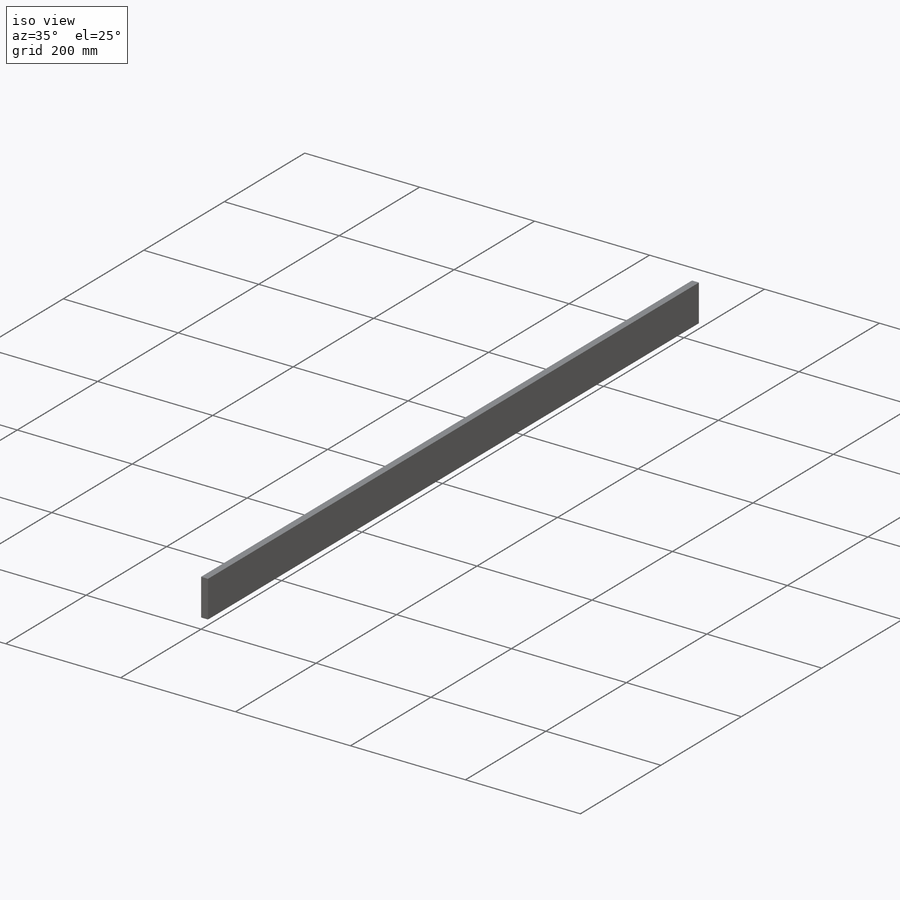
[diagram: iso view]
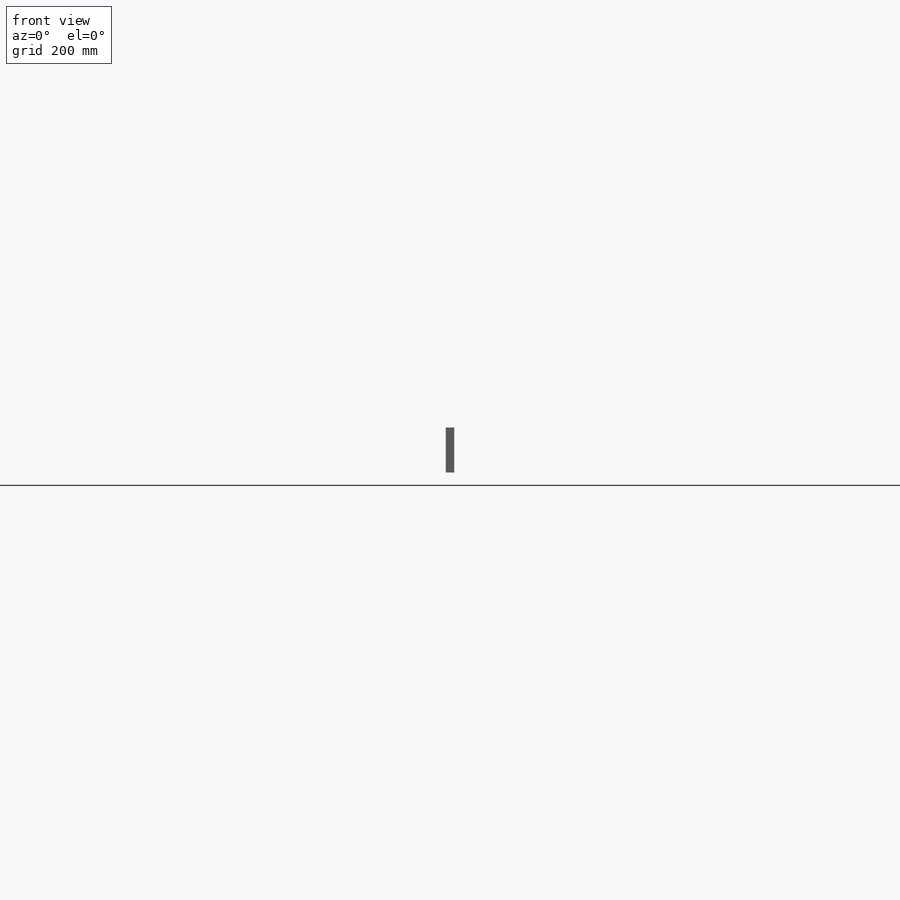
[diagram: front view]
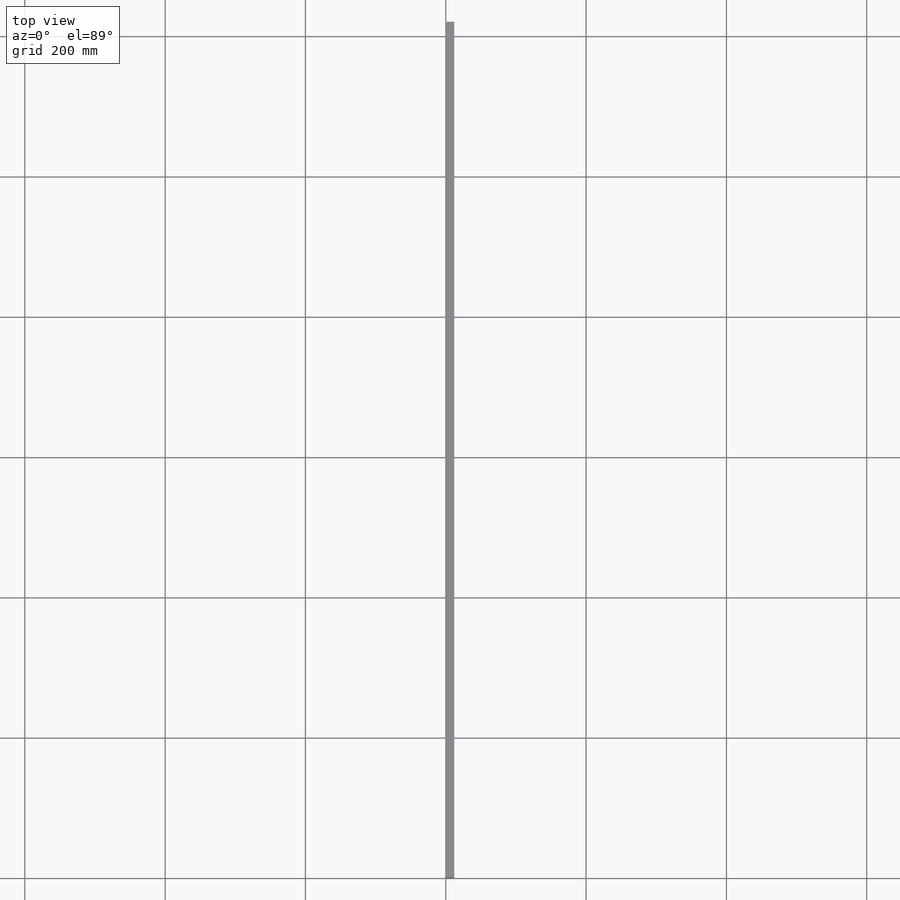
[diagram: top view]
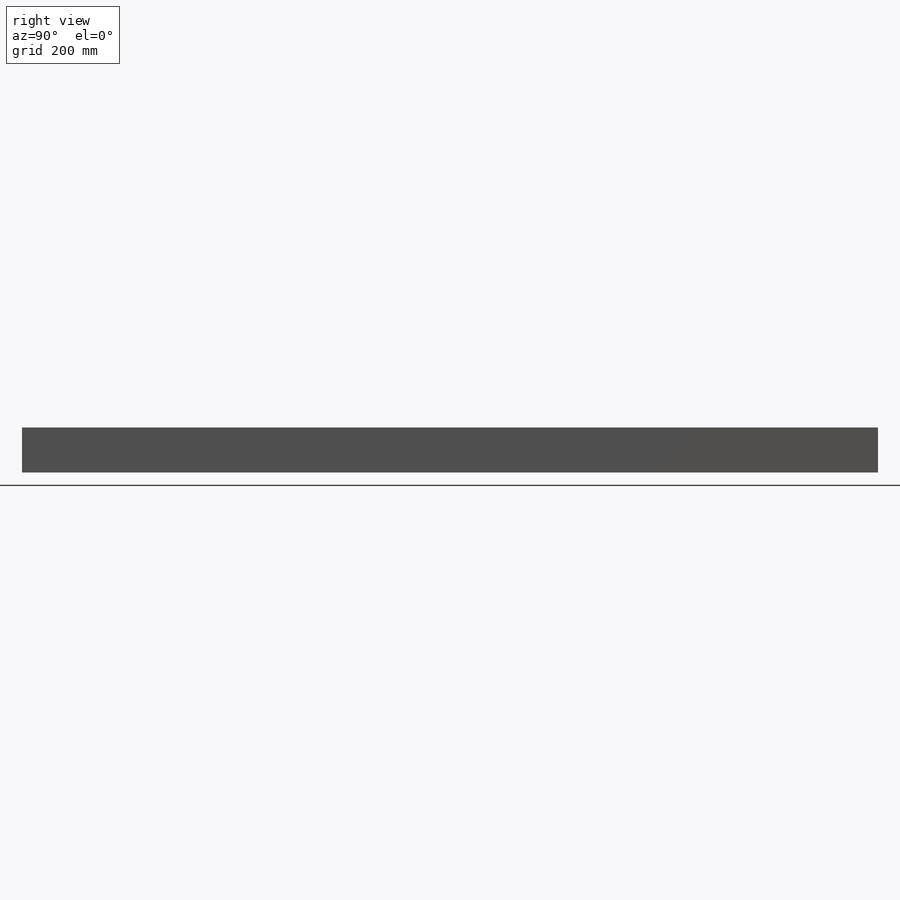
[diagram: right view]
SOLIDWORKS PART (.sldprt)
format: sldprt  version: not decoded by parser v0  size: 379,392 bytes
history: native  units: mm
features: sketch x8, cut_extrude x6, material x1, extrude x1 (+11 scaffold rows collapsed)
feature tree (27):
  scaffold x11  (default folders/planes/origin — collapsed)
  material  "Material <not specified>"
  sketch  "Sketch1"  dims[D1=102.0mm D2=1220.0mm]
  extrude  "Boss-Extrude1"  Depth=12mm
  sketch  "Sketch3"  dims[D2=20.0mm D3=10.0mm D4=20.0mm D1=8.0]
  sketch  "Sketch4"  dims[D1=12.0mm D2=20.0mm D3=20.0mm D4=20.0mm D5=20.0mm]
  cut_extrude  "Cut-Extrude1"  Depth=20mm
  sketch  "Sketch5"  dims[D1=10.0mm D2=10.0mm]
  cut_extrude  "Cut-Extrude2"  Depth=20mm
  sketch  "Sketch6"  dims[c1.D1=5.0mm c1.D3=5.0mm c1.D2=30.0mm c2.D3=7.0mm c2.D2=8.0]
  cut_extrude  "Cut-Extrude3"  Depth=20mm
  sketch  "Sketch7"  dims[c1.D1=5.0mm c1.D2=5.0mm c1.D3=5.0mm c1.D4=5.0mm c1.D5=5.0mm c2.D2=10.0mm c2.D3=10.0mm c2.D4=10.0mm c2.D6=10.0mm c2.D5=8.0]
  cut_extrude  "Cut-Extrude4"  Depth=22mm
  sketch  "Sketch8"  dims[D1=20.5mm D2=12.1mm D3=10.0mm D5=10.0mm D6=1041.25mm D4=2.0]
  cut_extrude  "Cut-Extrude5"  Depth=20mm
  sketch  "Sketch9"  dims[c1.D1=6.0mm c1.D2=6.0mm c1.D3=6.0mm c1.D4=6.0mm c2.D2=30.0mm c2.D3=29.375mm c2.D4=6.0mm c2.D5=30.0mm c2.D6=59.375mm c2.D7=6.0mm c3.D6=5.0]
  cut_extrude  "Cut-Extrude6"  Depth=20mm
decode coverage: 15 of 15 modeling features carry decoded parameters
note: suppression state not decoded; provenance and decode notes live in map.json
